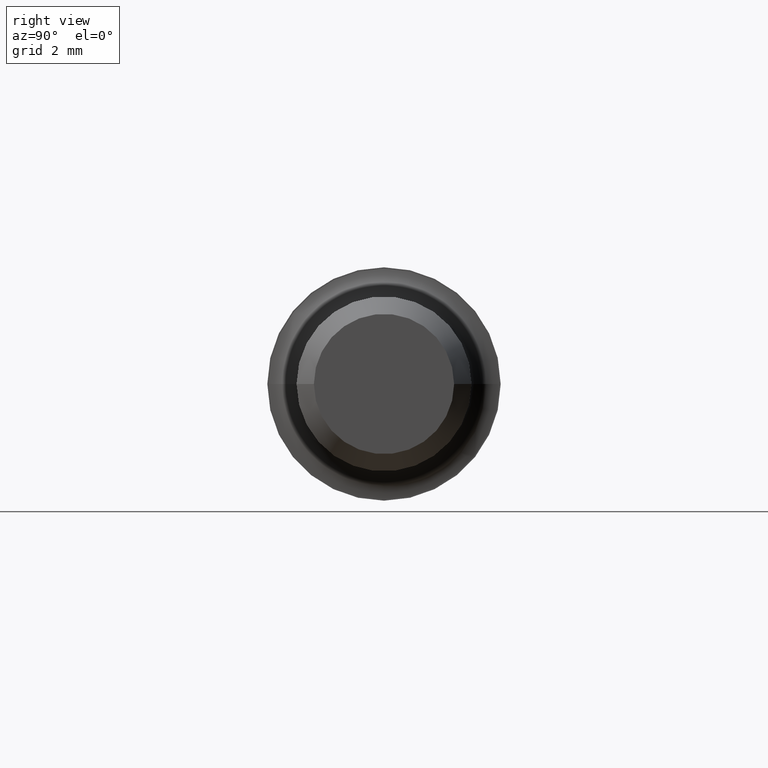
[diagram: clean part render]
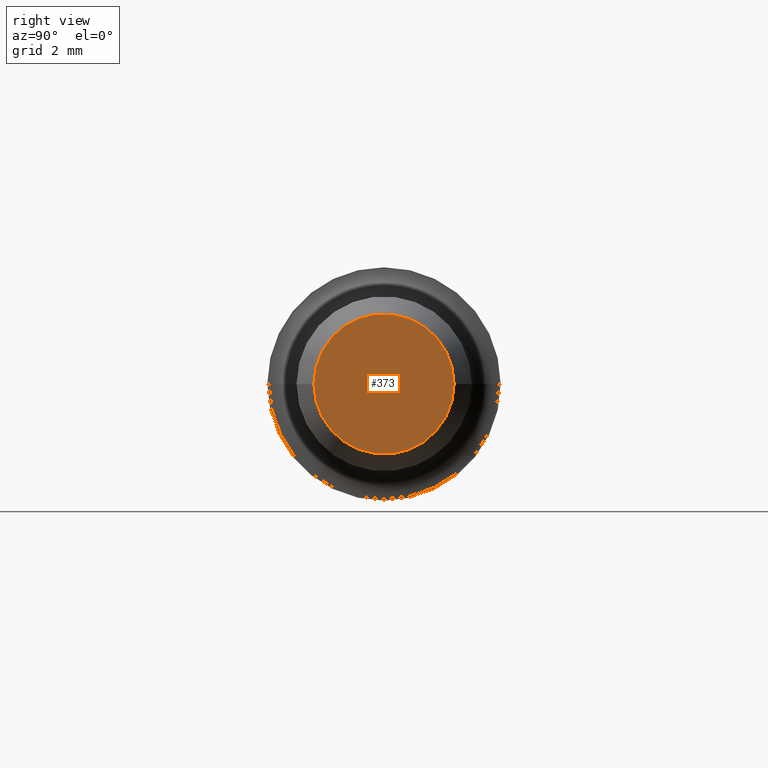
[diagram: same view with one face highlighted and labeled with its STEP entity id]
A machine part, right view. The second image highlights one B-rep face of the part: STEP entity #373.
In plain terms, the highlighted planar face has unit normal (-1, -0, 0).
Its self-contained STEP definition (entity closure, byte-faithful):
#23 = EDGE_CURVE ( 'NONE', #260, #344, #308, .T. ) ;
#26 = EDGE_CURVE ( 'NONE', #344, #260, #298, .T. ) ;
#59 = AXIS2_PLACEMENT_3D ( 'NONE', #99, #168, #119 ) ;
#61 = AXIS2_PLACEMENT_3D ( 'NONE', #103, #88, #160 ) ;
#69 = AXIS2_PLACEMENT_3D ( 'NONE', #110, #149, #87 ) ;
#87 = DIRECTION ( 'NONE',  ( 1.224646799147353200E-016, -1.000000000000000000, 0.0000000000000000000 ) ) ;
#88 = DIRECTION ( 'NONE',  ( 1.000000000000000000, 1.224646799147353200E-016, -0.0000000000000000000 ) ) ;
#99 = CARTESIAN_POINT ( 'NONE',  ( 0.6999999999999999600, 8.572527594031472000E-017, 0.0000000000000000000 ) ) ;
#103 = CARTESIAN_POINT ( 'NONE',  ( 0.6999999999999999600, 8.572527594031472000E-017, 0.0000000000000000000 ) ) ;
#108 = CARTESIAN_POINT ( 'NONE',  ( 0.6999999999999999600, 0.07519769367380038600, 1.035118584804308900E-017 ) ) ;
#110 = CARTESIAN_POINT ( 'NONE',  ( 0.6999999999999999600, 1.714505518806293900E-016, 0.0000000000000000000 ) ) ;
#119 = DIRECTION ( 'NONE',  ( 0.0000000000000000000, 1.000000000000000000, 0.0000000000000000000 ) ) ;
#148 = CARTESIAN_POINT ( 'NONE',  ( 0.6999999999999999600, -0.07519769367380022000, 0.0000000000000000000 ) ) ;
#149 = DIRECTION ( 'NONE',  ( -1.000000000000000000, -1.224646799147353200E-016, 0.0000000000000000000 ) ) ;
#160 = DIRECTION ( 'NONE',  ( 0.0000000000000000000, 1.000000000000000000, 0.0000000000000000000 ) ) ;
#168 = DIRECTION ( 'NONE',  ( 1.000000000000000000, 1.224646799147353200E-016, -0.0000000000000000000 ) ) ;
#178 = PLANE ( 'NONE',  #69 ) ;
#227 = EDGE_LOOP ( 'NONE', ( #345, #346 ) ) ;
#260 = VERTEX_POINT ( 'NONE', #108 ) ;
#272 = FACE_OUTER_BOUND ( 'NONE', #227, .T. ) ;
#298 = CIRCLE ( 'NONE', #61, 0.07519769367380030300 ) ;
#308 = CIRCLE ( 'NONE', #59, 0.07519769367380030300 ) ;
#344 = VERTEX_POINT ( 'NONE', #148 ) ;
#345 = ORIENTED_EDGE ( 'NONE', *, *, #26, .T. ) ;
#346 = ORIENTED_EDGE ( 'NONE', *, *, #23, .T. ) ;
#373 = ADVANCED_FACE ( 'NONE', ( #272 ), #178, .F. ) ;